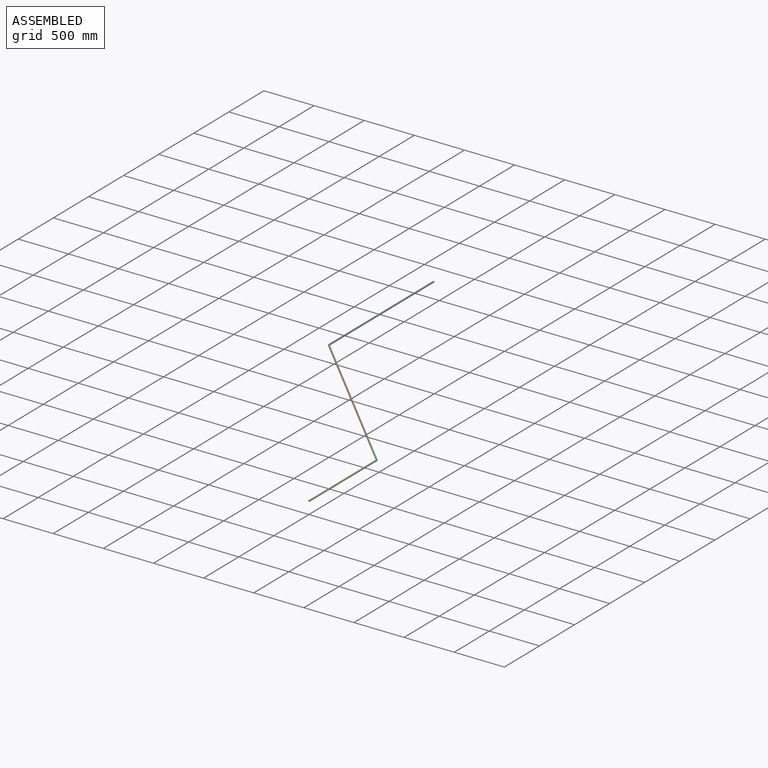
[diagram: assembled view]
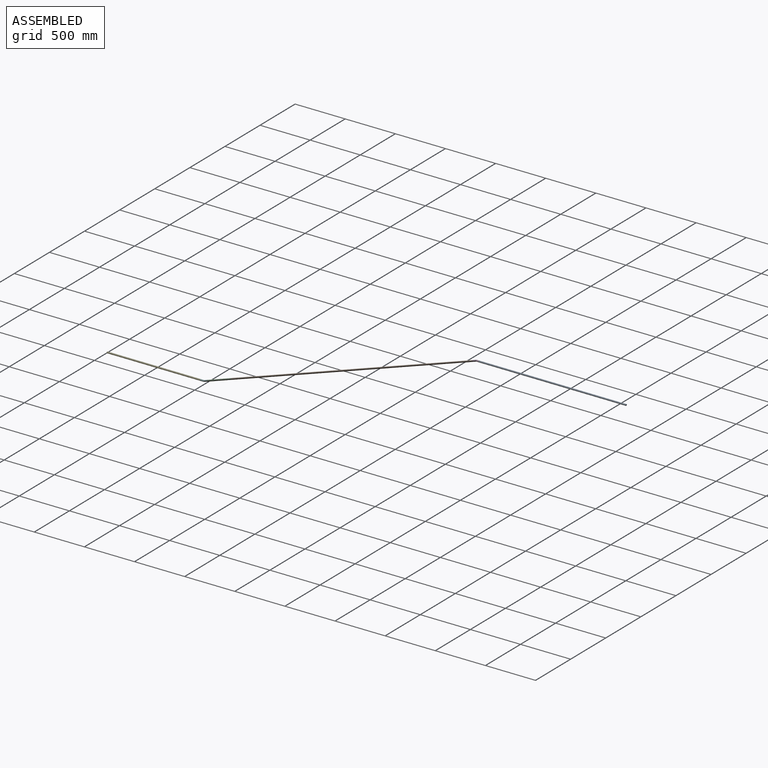
[diagram: assembled view, second angle]
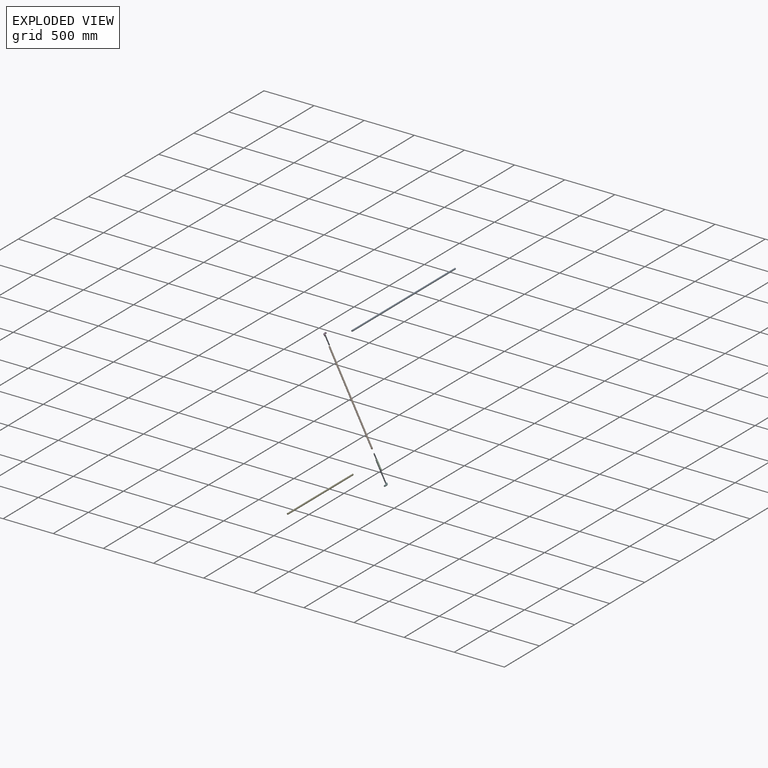
[diagram: exploded view]
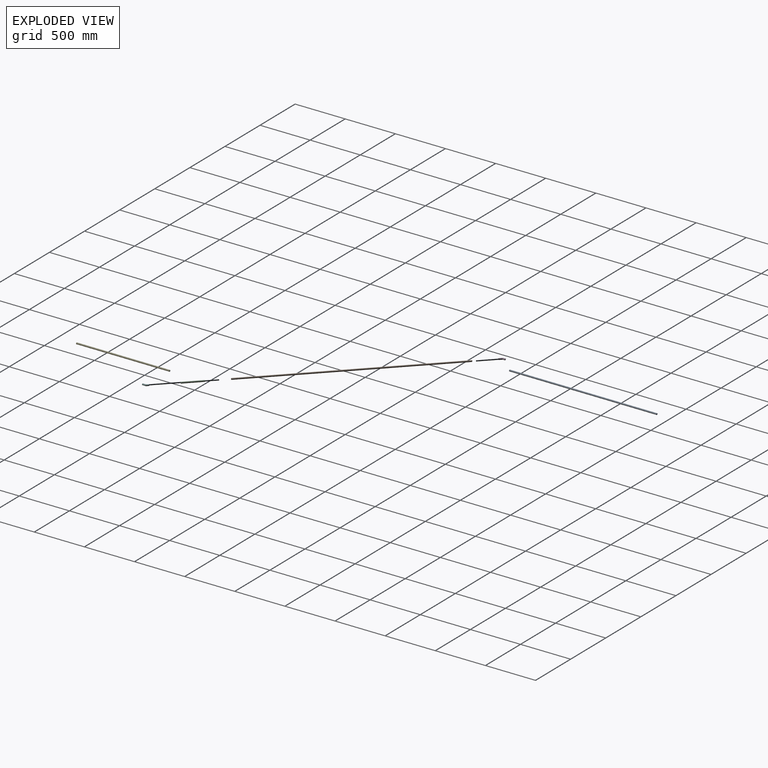
[diagram: exploded view, second angle]
ASSEMBLY  parts=6 mates=5
PART A: 3 faces, bbox 15x1470x15 mm
  f0: cylinder r=7.5mm len=1470mm, axis (0,-1,0), area 69272.1mm2, adj f1,f2
  f1: plane 15x15mm, normal (0,1,0), area 176.7mm2, adj f0
  f2: plane 15x15mm, normal (0,-1,0), area 176.7mm2, adj f0
PART B: 3 faces, bbox 15x2000x15 mm
  f0: cylinder r=7.5mm len=2000mm, axis (0,1,0), area 94247.8mm2, adj f1,f2
  f1: plane 15x15mm, normal (0,-1,0), area 176.7mm2, adj f0
  f2: plane 15x15mm, normal (0,1,0), area 176.7mm2, adj f0
PART C: 3 faces, bbox 15x200x15 mm
  f0: cylinder r=7.5mm len=200mm, axis (0,1,0), area 9424.8mm2, adj f1,f2
  f1: plane 15x15mm, normal (0,-1,0), area 176.7mm2, adj f0
  f2: plane 15x15mm, normal (0,1,0), area 176.7mm2, adj f0
PART D: 5 faces, bbox 39.7x55.3x15 mm
  f0: plane 15x15mm, normal (0,-1,0), area 176.7mm2, adj f2
  f1: plane 15x10.61mm, normal (0.71,0.71,0), area 176.7mm2, adj f4
  f2: cylinder r=7.5mm len=18.79mm, axis (0,1,0), area 885.3mm2, adj f0,f3
  f3: torus R=15mm, axis (0,0,-1), area 555.2mm2, adj f2,f4
  f4: cylinder r=7.5mm len=31.21mm, axis (0.71,0.71,0), area 1373.3mm2, adj f1,f3
PART E: 3 faces, bbox 15x930x15 mm
  f0: cylinder r=7.5mm len=930mm, axis (0,-1,0), area 43825.2mm2, adj f1,f2
  f1: plane 15x15mm, normal (0,1,0), area 176.7mm2, adj f0
  f2: plane 15x15mm, normal (0,-1,0), area 176.7mm2, adj f0
PART F: same geometry as D
PLACE A t=(13204.2,1174.64,-1611.59)mm
PLACE B rot(axis=(0,0,1),45deg) t=(13305.14,1062.02,-1611.59)mm
PLACE C rot(axis=(0,0,1),45deg) t=(14737.03,-334.52,-1611.59)mm
PLACE D rot(axis=(1,0,0),180deg) t=(13342.77,1174.64,-1575)mm
PLACE E t=(14802.51,-1414.02,-1611.59)mm
PLACE F rot(axis=(0,0,-1),135deg) t=(14923.4,-430.99,-1575)mm
MATE fastened B.f0 <-> D.f4  axis (-0.71,0.71,0) through (13367.77,1124.64,-1575)mm
MATE fastened F.f2 <-> C.f0  axis (-0.71,0.71,0) through (14923.4,-430.99,-1575)mm
MATE fastened D.f2 <-> A.f0  axis (0,1,0) through (13342.77,1174.64,-1575)mm
MATE fastened C.f0 <-> B.f0  axis (-0.71,0.71,0) through (14781.98,-289.57,-1575)mm
MATE fastened E.f0 <-> F.f4  axis (0,1,0) through (14941.08,-484.02,-1575)mm
